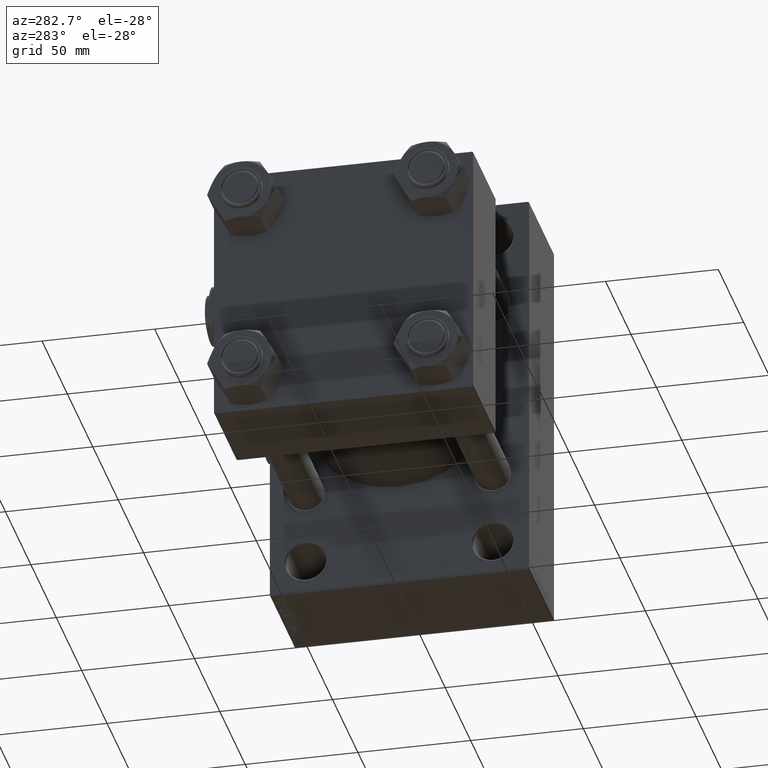
[diagram: clean part render]
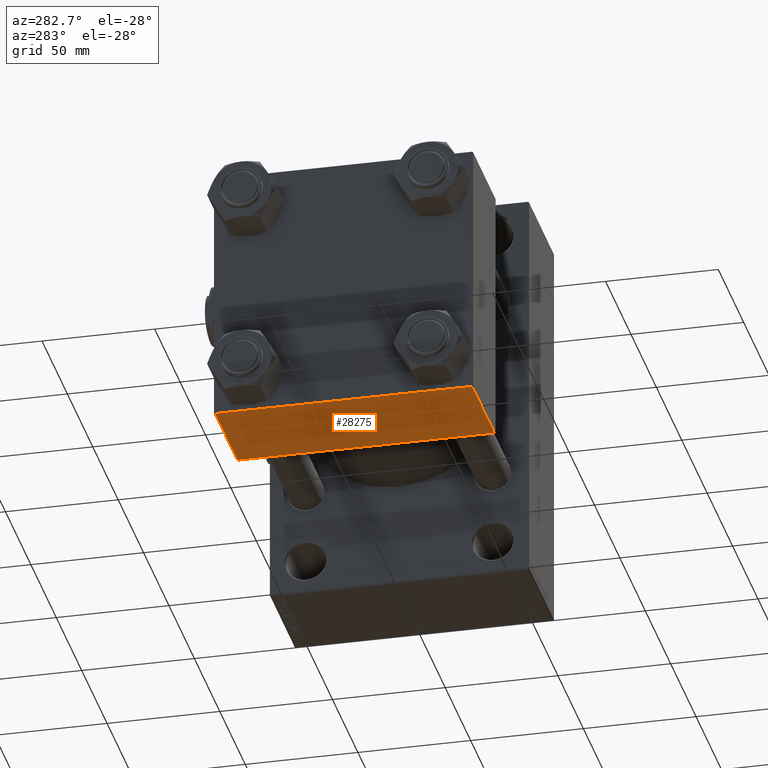
[diagram: same view with one face highlighted and labeled with its STEP entity id]
A machine part, auxiliary view. The second image highlights one B-rep face of the part: STEP entity #28275.
In plain terms, the highlighted planar face has unit normal (0, 0, -1).
Its self-contained STEP definition (entity closure, byte-faithful):
#1848 = VERTEX_POINT ( 'NONE', #47929 ) ;
#2483 = LINE ( 'NONE', #5987, #13831 ) ;
#4859 = DIRECTION ( 'NONE',  ( 0.000000000000000000, 1.000000000000000000, 1.206764157201257045E-16 ) ) ;
#5005 = VECTOR ( 'NONE', #13785, 1000.000000000000000 ) ;
#5660 = VERTEX_POINT ( 'NONE', #12810 ) ;
#5987 = CARTESIAN_POINT ( 'NONE',  ( 0.000000000000000000, 57.49999999999999289, -57.49999999999999289 ) ) ;
#6238 = VERTEX_POINT ( 'NONE', #19067 ) ;
#8887 = DIRECTION ( 'NONE',  ( 0.000000000000000000, 1.206764157201257045E-16, -1.000000000000000000 ) ) ;
#9187 = EDGE_CURVE ( 'NONE', #1848, #26591, #33607, .T. ) ;
#9750 = DIRECTION ( 'NONE',  ( 0.000000000000000000, -1.000000000000000000, -1.206764157201257045E-16 ) ) ;
#10072 = ORIENTED_EDGE ( 'NONE', *, *, #16428, .T. ) ;
#10420 = DIRECTION ( 'NONE',  ( 1.000000000000000000, 0.000000000000000000, 0.000000000000000000 ) ) ;
#11515 = DIRECTION ( 'NONE',  ( -1.000000000000000000, 0.000000000000000000, 0.000000000000000000 ) ) ;
#11896 = PLANE ( 'NONE',  #47132 ) ;
#12810 = CARTESIAN_POINT ( 'NONE',  ( 44.00000000000000000, -57.00000000000000711, -57.50000000000000711 ) ) ;
#13785 = DIRECTION ( 'NONE',  ( 0.000000000000000000, -1.000000000000000000, -1.206764157201257045E-16 ) ) ;
#13831 = VECTOR ( 'NONE', #9750, 1000.000000000000000 ) ;
#14938 = ORIENTED_EDGE ( 'NONE', *, *, #9187, .T. ) ;
#15551 = CARTESIAN_POINT ( 'NONE',  ( 0.000000000000000000, -57.00000000000000711, -57.50000000000000711 ) ) ;
#16337 = EDGE_CURVE ( 'NONE', #1848, #6238, #2483, .T. ) ;
#16428 = EDGE_CURVE ( 'NONE', #26591, #5660, #40269, .T. ) ;
#19067 = CARTESIAN_POINT ( 'NONE',  ( 0.000000000000000000, -57.00000000000000711, -57.50000000000000711 ) ) ;
#23679 = CARTESIAN_POINT ( 'NONE',  ( 44.00000000000000000, 57.00000000000002132, -57.49999999999999289 ) ) ;
#24010 = FACE_OUTER_BOUND ( 'NONE', #24310, .T. ) ;
#24310 = EDGE_LOOP ( 'NONE', ( #32508, #14938, #10072, #45184 ) ) ;
#26591 = VERTEX_POINT ( 'NONE', #23679 ) ;
#28275 = ADVANCED_FACE ( 'NONE', ( #24010 ), #11896, .T. ) ;
#30700 = EDGE_CURVE ( 'NONE', #5660, #6238, #38999, .T. ) ;
#32084 = VECTOR ( 'NONE', #10420, 1000.000000000000000 ) ;
#32508 = ORIENTED_EDGE ( 'NONE', *, *, #16337, .F. ) ;
#33607 = LINE ( 'NONE', #44942, #32084 ) ;
#35967 = VECTOR ( 'NONE', #11515, 1000.000000000000000 ) ;
#38999 = LINE ( 'NONE', #15551, #35967 ) ;
#40269 = LINE ( 'NONE', #47570, #5005 ) ;
#44942 = CARTESIAN_POINT ( 'NONE',  ( 44.00000000000000000, 57.00000000000002132, -57.49999999999999289 ) ) ;
#45184 = ORIENTED_EDGE ( 'NONE', *, *, #30700, .T. ) ;
#46928 = CARTESIAN_POINT ( 'NONE',  ( 44.00000000000000000, 57.49999999999999289, -57.49999999999999289 ) ) ;
#47132 = AXIS2_PLACEMENT_3D ( 'NONE', #46928, #8887, #4859 ) ;
#47570 = CARTESIAN_POINT ( 'NONE',  ( 44.00000000000000000, 57.49999999999999289, -57.49999999999999289 ) ) ;
#47929 = CARTESIAN_POINT ( 'NONE',  ( 0.000000000000000000, 57.00000000000002132, -57.49999999999999289 ) ) ;